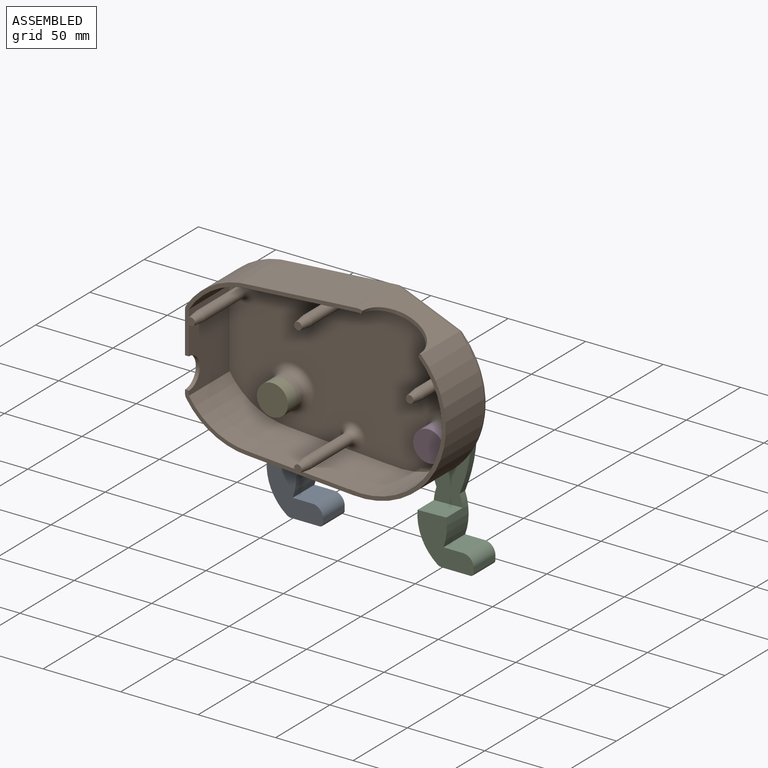
[diagram: assembled view]
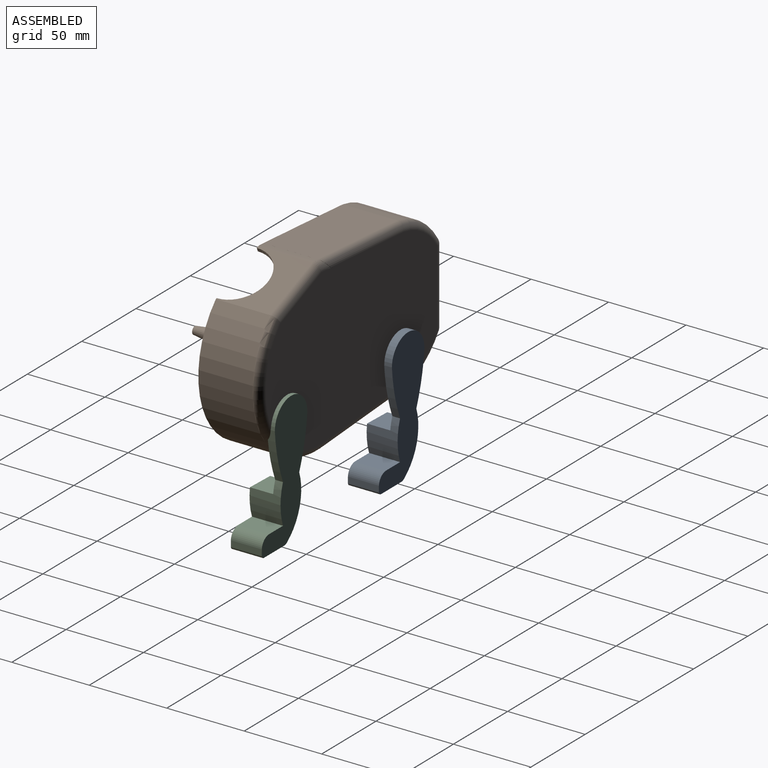
[diagram: assembled view, second angle]
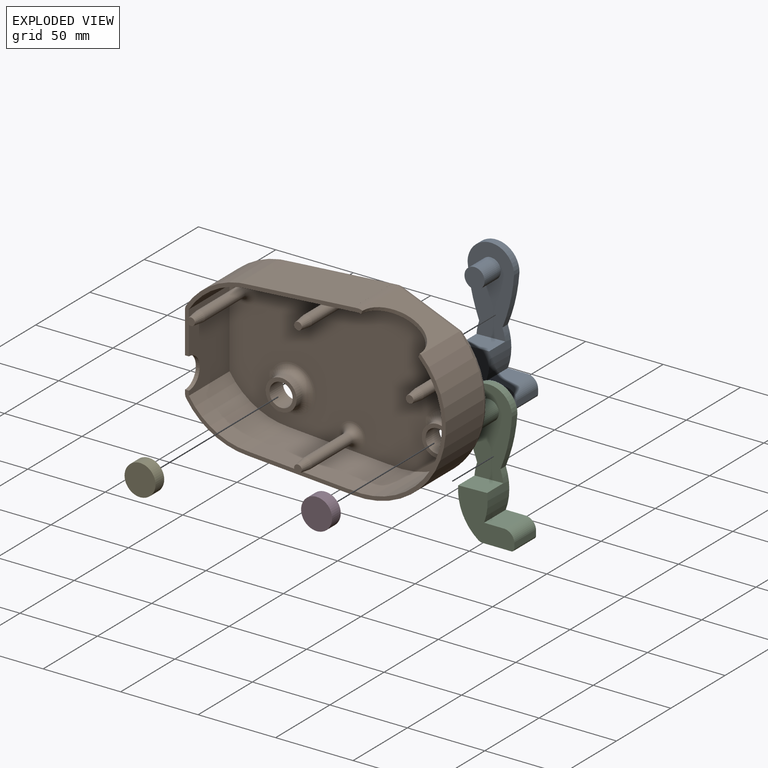
[diagram: exploded view]
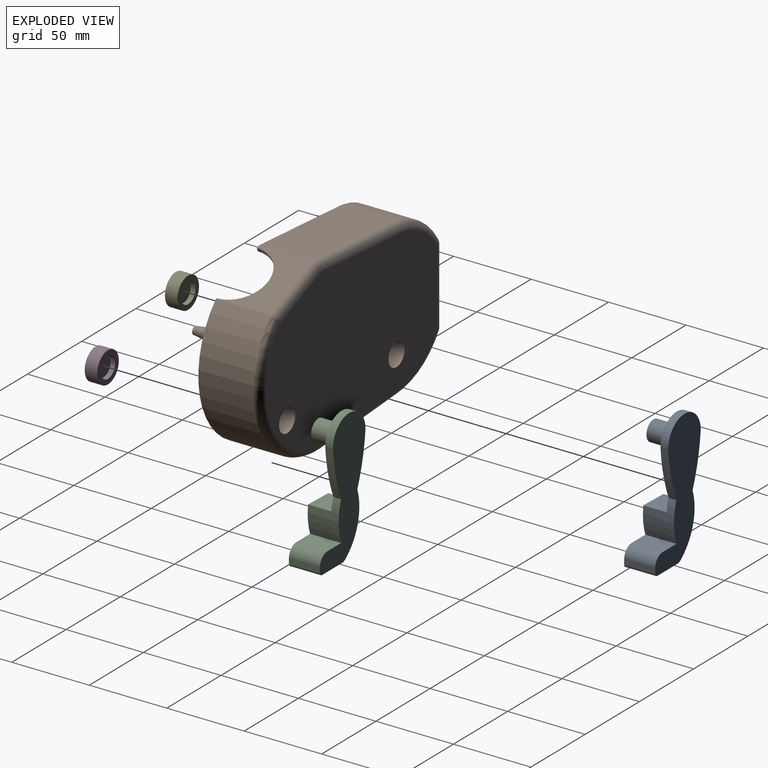
[diagram: exploded view, second angle]
ASSEMBLY  parts=5 mates=4
PART A: 17 faces, bbox 42x20x85 mm
  f0: cylinder r=117.61mm len=32.5mm, axis (0,-1,0), area 167.3mm2, adj f2,f3,f11,f14
  f1: cylinder r=106.34mm len=32.5mm, axis (0,-1,0), area 167.5mm2, adj f3,f4,f11,f14
  f2: cylinder r=32.18mm len=36.51mm, axis (0,-1,0), area 691.8mm2, adj f0,f10,f11,f12,f13,f14
  f3: cylinder r=15mm len=30mm, axis (0,-1,0), area 235.6mm2, adj f0,f1,f11,f14
  f4: cylinder r=37.13mm len=25.5mm, axis (0,-1,0), area 402.2mm2, adj f1,f5,f11,f12,f13,f14
  f5: plane 20x13.09mm, normal (0,0,1), area 261.9mm2, adj f4,f6,f11,f12
  f6: cylinder r=6.87mm len=20mm, axis (0,-1,0), area 215.8mm2, adj f5,f7,f11,f12
  f7: plane 20x2.7mm, normal (1,0,0), area 54mm2, adj f6,f8,f11,f12
  f8: cylinder r=2mm len=20mm, axis (0,-1,0), area 62.8mm2, adj f7,f9,f11,f12
  f9: plane 20x18.42mm, normal (0,0,-1), area 368.3mm2, adj f8,f10,f11,f12
  f10: cylinder r=5mm len=20mm, axis (0,-1,0), area 64.1mm2, adj f2,f9,f11,f12
  f11: plane 85x42.01mm, normal (0,1,0), area 1913.1mm2, adj f0,f1,f2,f3,f4,f5,f6,f7
  f12: plane 36.35x29.85mm, normal (0,-1,0), area 637.4mm2, adj f2,f4,f5,f6,f7,f8,f9,f10
  f13: plane 18.64x15mm, normal (-0.03,0,1), area 279.7mm2, adj f2,f4,f12,f14
  f14: plane 55.63x30mm, normal (0,-1,0), area 1143mm2, adj f0,f1,f2,f3,f4,f13,f15
  f15: cylinder r=6.5mm len=15mm, axis (0,1,0), area 612.6mm2, adj f14,f16
  f16: plane 13x13mm, normal (0,-1,0), area 132.7mm2, adj f15
PART B: 66 faces, bbox 175.5x52.5x114.7 mm
  f0: plane 168.34x94.18mm, normal (0,-1,0), area 626.6mm2, adj f2,f3,f4,f9,f10,f11,f13,f14
  f1: plane 114.49x57.21mm, normal (0,-1,0), area 372.4mm2, adj f2,f5,f6,f7,f8,f9,f15,f16
  f2: plane 38.44x35mm, normal (0.38,0,0.93), area 825.2mm2, adj f0,f1,f4,f37,f39,f41
  f3: plane 35x0.01mm, normal (1,0,0), area 0.3mm2, adj f0,f4,f11,f33
  f4: cylinder r=55mm len=93.89mm, axis (0,1,0), area 4706.4mm2, adj f0,f2,f3,f35
  f5: cylinder r=55mm len=35mm, axis (0,1,0), area 115.2mm2, adj f1,f6,f36,f39
  f6: plane 35x0.01mm, normal (1,0,0), area 0.3mm2, adj f1,f5,f7,f34
  f7: plane 66.38x35mm, normal (-0.07,0,1), area 2329.2mm2, adj f1,f6,f8,f32
  f8: cylinder r=50mm len=41.28mm, axis (0,1,0), area 1719.1mm2, adj f1,f7,f25,f30
  f9: plane 48.94x35mm, normal (-1,0,0), area 1555.9mm2, adj f0,f1,f24,f25,f26,f40
  f10: cylinder r=50mm len=39.58mm, axis (0,1,0), area 1659.5mm2, adj f0,f11,f24,f29
  f11: plane 68.08x35mm, normal (-0.07,0,-1), area 2388.7mm2, adj f0,f3,f10,f31
  f12: plane 158.34x99.98mm, normal (0,1,0), area 13113.7mm2, adj f26,f29,f30,f31,f32,f33,f34,f35
  f13: plane 37.5x0.13mm, normal (-1,0,0), area 4.8mm2, adj f0,f14,f22,f23
  f14: cylinder r=52.5mm len=89.27mm, axis (0,1,0), area 4896mm2, adj f0,f13,f15,f23,f50,f64
  f15: plane 38.45x37.5mm, normal (-0.38,0,-0.93), area 929.5mm2, adj f0,f1,f14,f16,f23,f41
  f16: cylinder r=52.5mm len=37.5mm, axis (0,1,0), area 240.6mm2, adj f1,f15,f17,f23
  f17: plane 37.5x0.12mm, normal (-1,0,0), area 4.7mm2, adj f1,f16,f18,f23
  f18: plane 63.77x37.5mm, normal (0.07,0,-1), area 2397.6mm2, adj f1,f17,f19,f23
  f19: cylinder r=47.5mm len=39.69mm, axis (0,1,0), area 1780.5mm2, adj f1,f18,f20,f23,f53
  f20: plane 50.4x37.5mm, normal (1,0,0), area 1732.9mm2, adj f0,f1,f19,f21,f23,f40
  f21: cylinder r=47.5mm len=38.04mm, axis (0,1,0), area 1718.3mm2, adj f0,f20,f22,f23
  f22: plane 65.45x37.52mm, normal (0.07,0,1), area 2459.8mm2, adj f0,f13,f21,f23,f51
  f23: plane 163.34x104.99mm, normal (0,-1,0), area 12272.5mm2, adj f13,f14,f15,f16,f17,f18,f19,f20
  f24: cylinder r=5mm len=35mm, axis (0,1,0), area 100.6mm2, adj f0,f9,f10,f27
  f25: cylinder r=5mm len=35mm, axis (0,1,0), area 100.6mm2, adj f1,f8,f9,f28
  f26: cylinder r=5mm len=48.94mm, axis (0,0,-1), area 384.4mm2, adj f9,f12,f27,f28
  f27: sphere r=5mm, area 14.4mm2, adj f24,f26,f29
  f28: sphere r=5mm, area 14.4mm2, adj f25,f26,f30
  f29: torus R=45mm, axis (0,-1,0), area 359.1mm2, adj f10,f12,f27,f31
  f30: torus R=45mm, axis (0,-1,0), area 372.3mm2, adj f8,f12,f28,f32
  f31: cylinder r=5mm len=68.49mm, axis (1,0,-0.07), area 520.9mm2, adj f11,f12,f29,f33
  f32: cylinder r=5mm len=66.89mm, axis (-1,0,-0.07), area 507.9mm2, adj f7,f12,f30,f34
  f33: cylinder r=5mm len=5.78mm, axis (0,0,1), area 0.9mm2, adj f3,f12,f31,f35
  f34: cylinder r=5mm len=5.78mm, axis (0,0,1), area 0.8mm2, adj f6,f12,f32,f36
  f35: torus R=50mm, axis (0,-1,0), area 1034.1mm2, adj f4,f12,f33,f37
  f36: torus R=50mm, axis (0,-1,0), area 40.7mm2, adj f5,f12,f34,f38
  f37: cylinder r=5mm len=40.33mm, axis (-0.93,0,0.38), area 323.3mm2, adj f2,f12,f35,f38
  f38: sphere r=5mm, area 10.4mm2, adj f36,f37,f39
  f39: cylinder r=5mm len=35mm, axis (0,1,0), area 73mm2, adj f1,f2,f5,f38
  f40: cylinder r=10mm len=20mm, axis (-1,0,0), area 78.5mm2, adj f0,f1,f9,f20
  f41: cylinder r=20mm len=37.97mm, axis (0.38,0,0.93), area 157.1mm2, adj f0,f1,f2,f15
  f42: cylinder r=3.5mm len=37mm, axis (0,1,0), area 813.7mm2, adj f53,f57
  f43: plane 5x5mm, normal (0,-1,0), area 19.6mm2, adj f57
  f44: cylinder r=3.5mm len=37mm, axis (0,1,0), area 813.7mm2, adj f52,f56
  f45: plane 5x5mm, normal (0,-1,0), area 19.6mm2, adj f56
  f46: cylinder r=3.5mm len=37mm, axis (0,1,0), area 813.7mm2, adj f51,f55
  f47: plane 5x5mm, normal (0,-1,0), area 19.6mm2, adj f55
  f48: cylinder r=3.5mm len=37mm, axis (0,1,0), area 813.7mm2, adj f50,f54
  f49: plane 5x5mm, normal (0,-1,0), area 19.6mm2, adj f54
  f50: torus R=8.5mm, axis (0,-1,0), area 261.8mm2, adj f14,f23,f48
  f51: torus R=8.5mm, axis (0,-1,0), area 262.4mm2, adj f22,f23,f46
  f52: torus R=8.5mm, axis (0,-1,0), area 262.4mm2, adj f23,f44
  f53: torus R=8.5mm, axis (0,-1,0), area 260.4mm2, adj f19,f23,f42
  f54: cone r=2.5mm half-angle=7.1deg, axis (0,1,0), area 152mm2, adj f48,f49
  f55: cone r=2.5mm half-angle=7.1deg, axis (0,1,0), area 152mm2, adj f46,f47
  f56: cone r=2.5mm half-angle=7.1deg, axis (0,1,0), area 152mm2, adj f44,f45
  f57: cone r=2.5mm half-angle=7.1deg, axis (0,1,0), area 152mm2, adj f42,f43
  f58: cylinder r=7.5mm len=15mm, axis (0,1,0), area 589mm2, adj f12,f63
  f59: cylinder r=7.5mm len=15mm, axis (0,1,0), area 589mm2, adj f12,f61
  f60: cylinder r=10mm len=20mm, axis (0,1,0), area 314.2mm2, adj f61,f65
  f61: plane 20x20mm, normal (0,-1,0), area 137.4mm2, adj f59,f60
  f62: cylinder r=10mm len=20mm, axis (0,1,0), area 314.2mm2, adj f63,f64
  f63: plane 20x20mm, normal (0,-1,0), area 137.4mm2, adj f58,f62
  f64: torus R=15mm, axis (0,-1,0), area 569.6mm2, adj f14,f23,f62
  f65: torus R=15mm, axis (0,-1,0), area 583.1mm2, adj f23,f60
PART C: same geometry as A
PART D: 5 faces, bbox 20x8x20 mm
  f0: cylinder r=10mm len=20mm, axis (0,-1,0), area 502.7mm2, adj f1,f2
  f1: plane 20x20mm, normal (0,1,0), area 171mm2, adj f0,f3
  f2: plane 20x20mm, normal (0,-1,0), area 314.2mm2, adj f0
  f3: cylinder r=6.75mm len=13.5mm, axis (0,1,0), area 127.2mm2, adj f1,f4
  f4: plane 13.5x13.5mm, normal (0,1,0), area 143.1mm2, adj f3
PART E: same geometry as D
PLACE A t=(8346.95,-12426.35,-1918.43)mm
PLACE B t=(8412.65,-12413.85,-1885.21)mm
PLACE C t=(8447.73,-12431.35,-1918.43)mm
PLACE D t=(8402.83,-12418.35,-1914.33)mm
PLACE E t=(8302.05,-12418.35,-1914.33)mm
MATE fastened A.f15 <-> B.f59  axis (0,-1,0) through (8346.95,-12426.35,-1909.66)mm
MATE fastened B.f58 <-> D.f0  axis (0,-1,0) through (8447.73,-12426.35,-1909.66)mm
MATE fastened C.f3 <-> B.f58  axis (0,-1,0) through (8447.73,-12416.35,-1909.66)mm
MATE fastened B.f59 <-> E.f0  axis (0,-1,0) through (8346.95,-12426.35,-1909.66)mm
